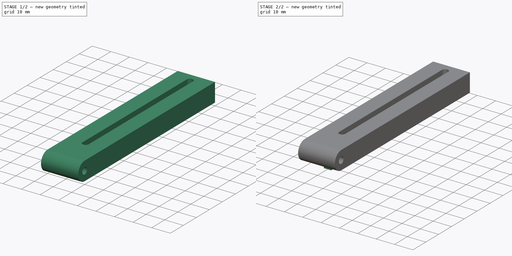
[diagram: build sequence overview — one tinted view per stage of 2, left to right]
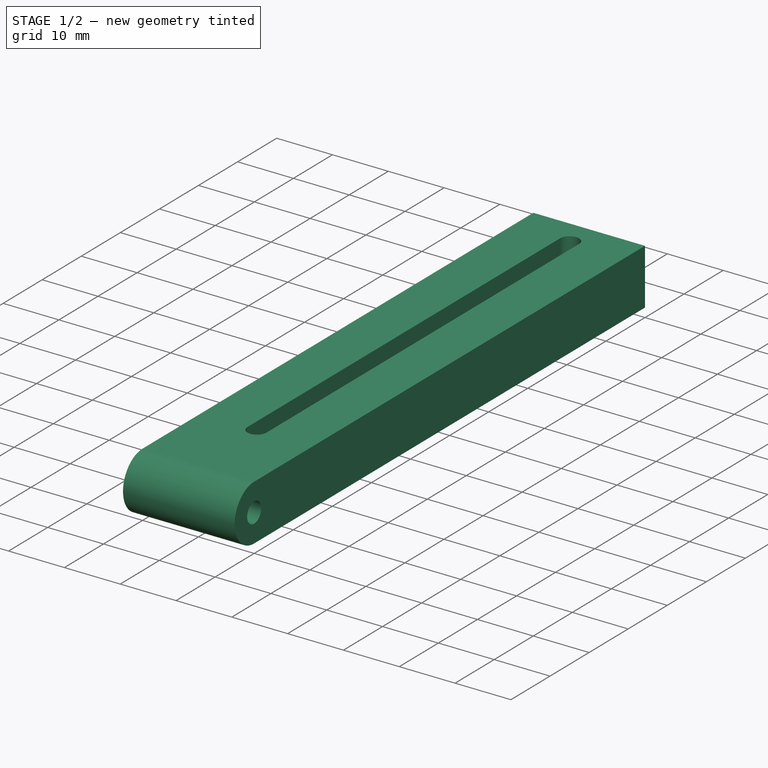
[diagram: stage 1 of 2 — iso view after this stage's code; geometry added in this stage tinted green]
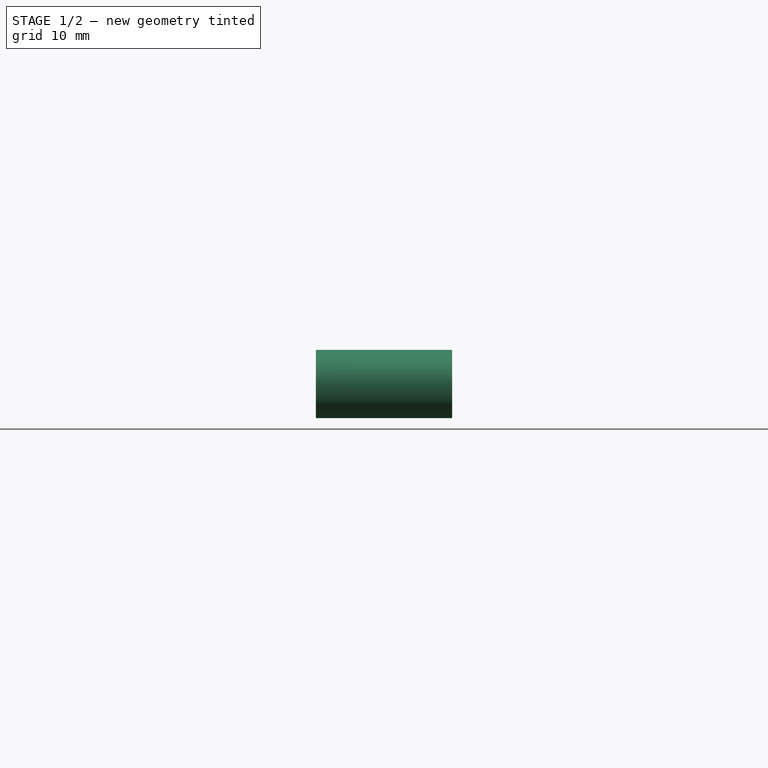
[diagram: stage 1 of 2 — front view after this stage's code; geometry added in this stage tinted green]
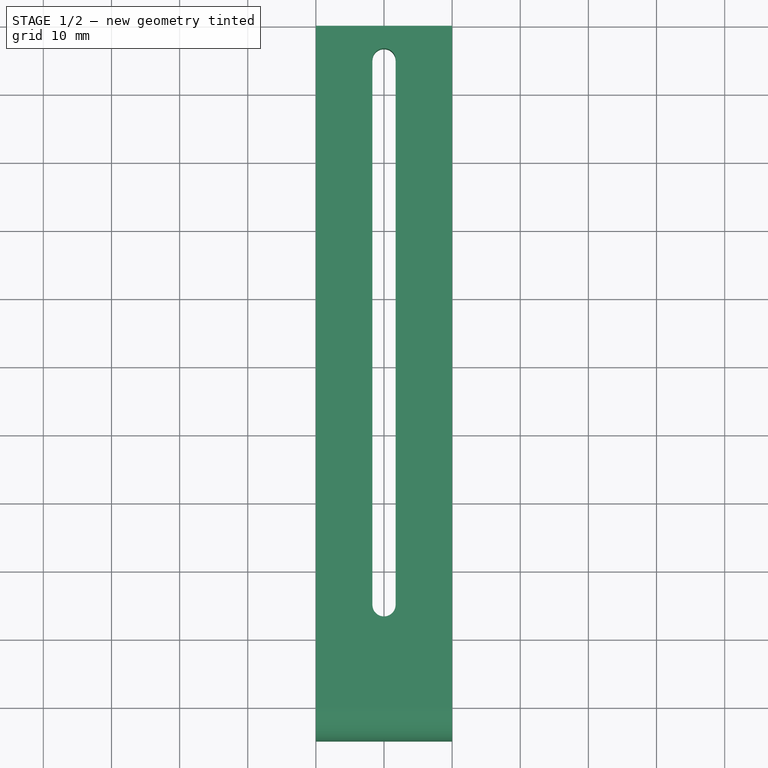
[diagram: stage 1 of 2 — top view after this stage's code; geometry added in this stage tinted green]
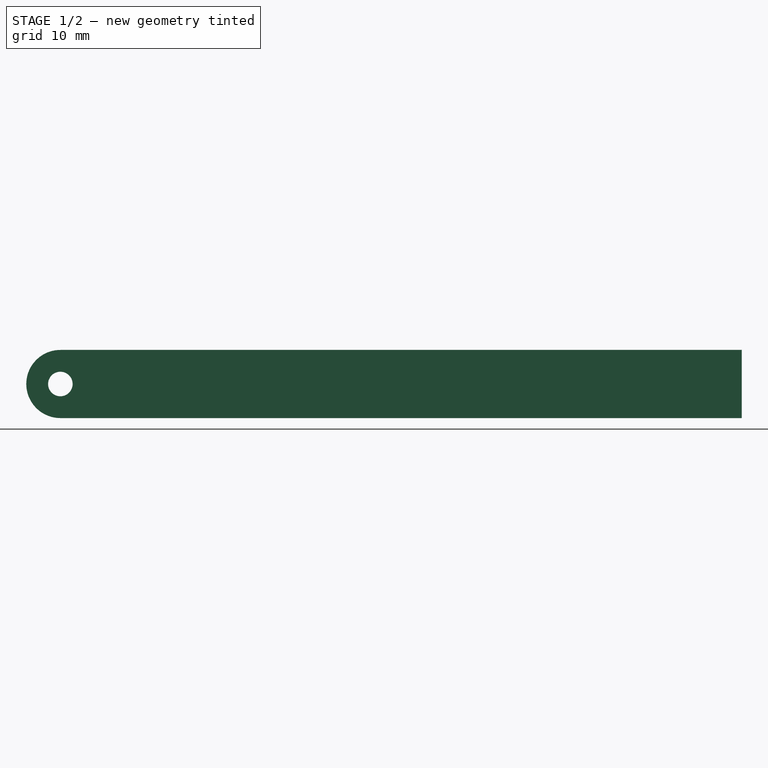
[diagram: stage 1 of 2 — right view after this stage's code; geometry added in this stage tinted green]
FCSTD DOCUMENT
Label: Arm
objects: Sketcher::SketchObject×4, PartDesign::Pad×2, PartDesign::Pocket×2
note: 10 computed .brp shape members not serialized (recipe doc carries the construction recipe); baked Part::Feature solids carry a one-line shape summary decoded from their .brp

FEATURE [Sketcher::SketchObject] Sketch
  Placement = pos=(0,0,0) rot=(0.57735,0.57735,0.57735;2.0944rad)
  sketch-geometry (6):
    g0: ArcOfCircle CenterX=0 CenterY=5 CenterZ=0 NormalX=0 NormalY=0 NormalZ=1 Radius=5 StartAngle=1.5708 EndAngle=4.71239
    g1: LineSegment StartX=0 StartY=0 StartZ=0 EndX=100 EndY=0 EndZ=0
    g2: LineSegment StartX=100 StartY=0 StartZ=0 EndX=100 EndY=10 EndZ=0
    g3: LineSegment StartX=100 StartY=10 StartZ=0 EndX=0 EndY=10 EndZ=0
    g4: LineSegment [constr] StartX=0 StartY=10 StartZ=0 EndX=0 EndY=0 EndZ=0
    g5: Circle CenterX=0 CenterY=5 CenterZ=0 NormalX=0 NormalY=0 NormalZ=1 Radius=1.8
  constraints (17):
    c: Coincident(g1,g2)
    c: Coincident(g2,g3)
    c: Coincident(g3,g4)
    c: Coincident(g4,g1)
    c: Horizontal(g1)
    c: Horizontal(g3)
    c: Vertical(g2)
    c: Vertical(g4)
    c: Coincident(g1,g0)
    c: Coincident(g0,g3)
    c: PointOnObject(g0,g4)
    c: DistanceY(g2) = 10
    c: Coincident(g5,g0)
    c: Radius(g5) = 1.8
    c: DistanceX(g0) = 0
    c: DistanceY(g0) = 0
    c: DistanceX(g1) = 100
FEATURE [PartDesign::Pad] Pad
  Length = 20
  MirroredExtent = false
  Sketch = -> Sketch
FEATURE [Sketcher::SketchObject] Sketch001
  Placement = pos=(0,0,10) rot=(0,0,1;0rad)
  Support = -> Pad [Face4]
  sketch-geometry (6):
    g0: ArcOfCircle CenterX=10 CenterY=95 CenterZ=0 NormalX=0 NormalY=0 NormalZ=1 Radius=1.7 StartAngle=0 EndAngle=3.14159
    g1: ArcOfCircle CenterX=10 CenterY=15 CenterZ=0 NormalX=0 NormalY=0 NormalZ=1 Radius=1.7 StartAngle=3.14159 EndAngle=6.28319
    g2: LineSegment [constr] StartX=8.3 StartY=95 StartZ=0 EndX=11.7 EndY=95 EndZ=0
    g3: LineSegment StartX=11.7 StartY=95 StartZ=0 EndX=11.7 EndY=15 EndZ=0
    g4: LineSegment [constr] StartX=11.7 StartY=15 StartZ=0 EndX=8.3 EndY=15 EndZ=0
    g5: LineSegment StartX=8.3 StartY=15 StartZ=0 EndX=8.3 EndY=95 EndZ=0
  constraints (18):
    c: Coincident(g2,g3)
    c: Coincident(g3,g4)
    c: Coincident(g4,g5)
    c: Coincident(g5,g2)
    c: Horizontal(g2)
    c: Horizontal(g4)
    c: Vertical(g3)
    c: Vertical(g5)
    c: Coincident(g1,g4)
    c: Coincident(g3,g1)
    c: Coincident(g2,g0)
    c: Coincident(g0,g2)
    c: PointOnObject(g0,g2)
    c: PointOnObject(g1,g4)
    c: Radius(g0) = 1.7
    c: DistanceY(g0,g1) = -80
    c: DistanceX(g1) = 10
    c: DistanceY(g1) = 15
FEATURE [PartDesign::Pocket] Pocket
  Length = 10
  Sketch = -> Sketch001
  Type = 0
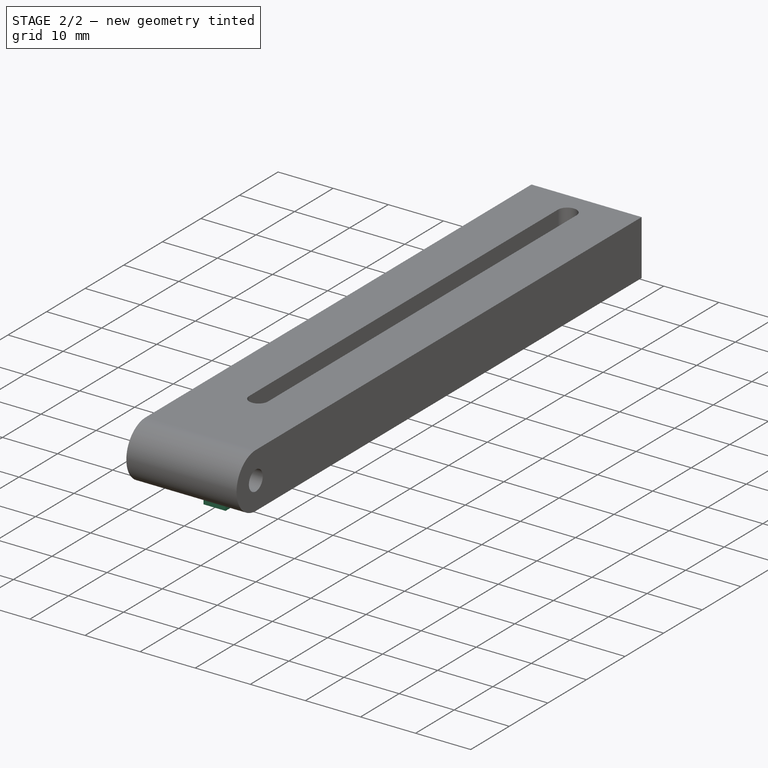
[diagram: stage 2 of 2 — iso view after this stage's code; geometry added in this stage tinted green]
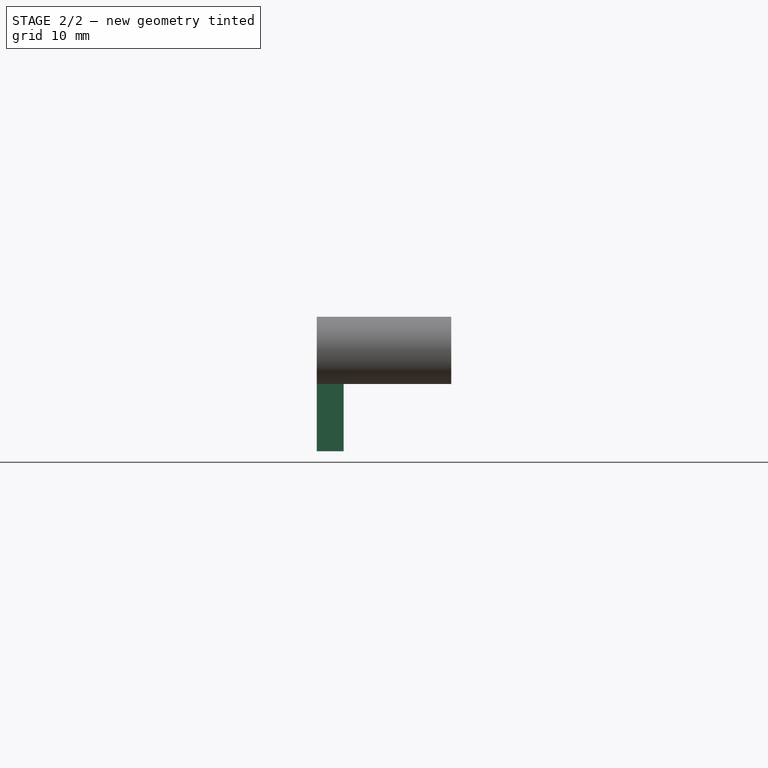
[diagram: stage 2 of 2 — front view after this stage's code; geometry added in this stage tinted green]
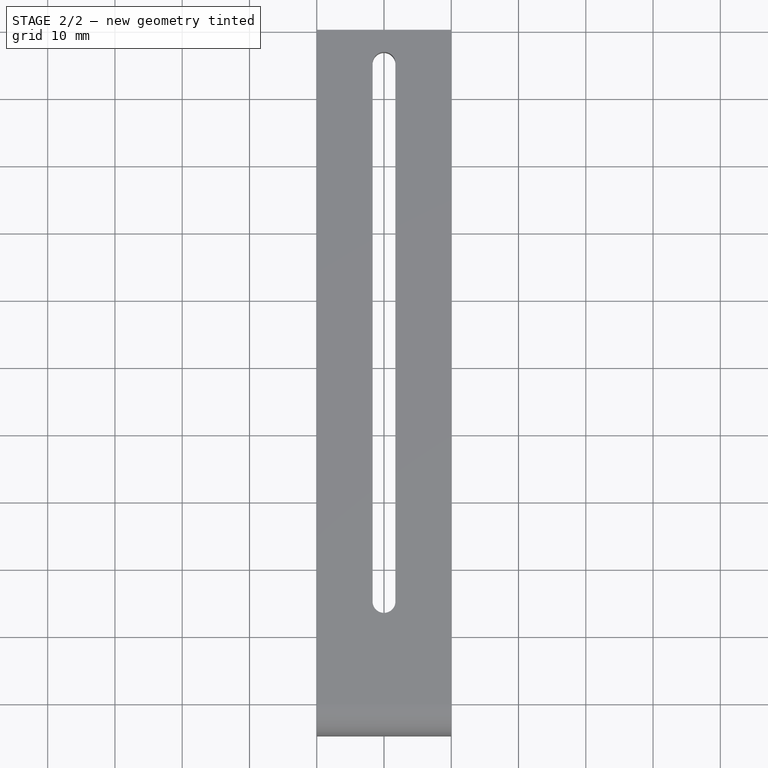
[diagram: stage 2 of 2 — top view after this stage's code; geometry added in this stage tinted green]
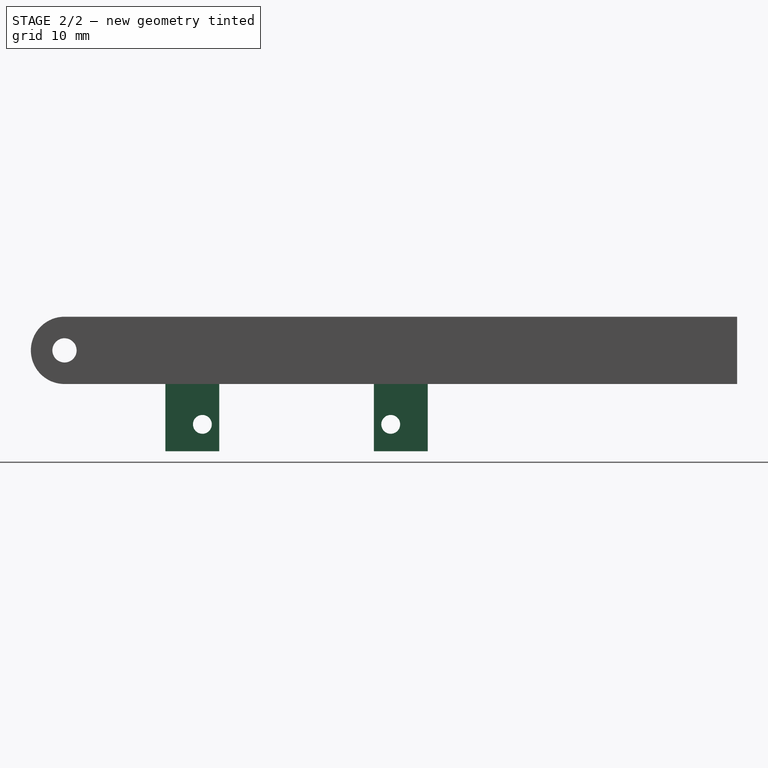
[diagram: stage 2 of 2 — right view after this stage's code; geometry added in this stage tinted green]
FEATURE [Sketcher::SketchObject] Sketch002
  Placement = pos=(0,0,0) rot=(1,0,0;3.14159rad)
  Support = -> Pocket [Face3]
  sketch-geometry (10):
    g0: LineSegment StartX=4 StartY=-23 StartZ=0 EndX=0 EndY=-23 EndZ=0
    g1: LineSegment StartX=0 StartY=-23 StartZ=0 EndX=0 EndY=-15 EndZ=0
    g2: LineSegment StartX=0 StartY=-15 StartZ=0 EndX=4 EndY=-15 EndZ=0
    g3: LineSegment StartX=4 StartY=-15 StartZ=0 EndX=4 EndY=-23 EndZ=0
    g4: LineSegment StartX=4 StartY=-46 StartZ=0 EndX=0 EndY=-46 EndZ=0
    g5: LineSegment StartX=0 StartY=-46 StartZ=0 EndX=0 EndY=-54 EndZ=0
    g6: LineSegment StartX=0 StartY=-54 StartZ=0 EndX=4 EndY=-54 EndZ=0
    g7: LineSegment StartX=4 StartY=-54 StartZ=0 EndX=4 EndY=-46 EndZ=0
    g8: LineSegment [constr] StartX=0 StartY=-23 StartZ=0 EndX=0 EndY=-46 EndZ=0
    g9: LineSegment [constr] StartX=4 StartY=-23 StartZ=0 EndX=4 EndY=-46 EndZ=0
  constraints (28):
    c: Coincident(g0,g1)
    c: Coincident(g1,g2)
    c: Coincident(g2,g3)
    c: Coincident(g3,g0)
    c: Horizontal(g0)
    c: Horizontal(g2)
    c: Vertical(g1)
    c: Vertical(g3)
    c: Coincident(g4,g5)
    c: Coincident(g5,g6)
    c: Coincident(g6,g7)
    c: Coincident(g7,g4)
    c: Horizontal(g4)
    c: Horizontal(g6)
    c: Vertical(g5)
    c: Vertical(g7)
    c: DistanceX(g6) = 4
    c: Equal(g7,g3)
    c: Coincident(g8,g0)
    c: Coincident(g8,g4)
    c: Vertical(g8)
    c: Coincident(g9,g0)
    c: Coincident(g9,g4)
    c: Vertical(g9)
    c: DistanceY(g3) = -8
    c: DistanceX(g1) = 0
    c: DistanceY(g1) = -15
    c: DistanceY(g9) = -23
FEATURE [PartDesign::Pad] Pad001
  Length = 10
  MirroredExtent = false
  Sketch = -> Sketch002
FEATURE [Sketcher::SketchObject] Sketch003
  Placement = pos=(0,0,0) rot=(0.57735,-0.57735,-0.57735;2.0944rad)
  Support = -> Pad001 [Face17]
  sketch-geometry (3):
    g0: Circle CenterX=-48.5 CenterY=-6 CenterZ=0 NormalX=0 NormalY=0 NormalZ=1 Radius=1.4
    g1: Circle CenterX=-20.5 CenterY=-6 CenterZ=0 NormalX=0 NormalY=0 NormalZ=1 Radius=1.4
    g2: LineSegment [constr] StartX=-48.5 StartY=-6 StartZ=0 EndX=-20.5 EndY=-6 EndZ=0
  constraints (8):
    c: Coincident(g2,g0)
    c: Coincident(g2,g1)
    c: Horizontal(g2)
    c: Equal(g1,g0)
    c: Radius(g0) = 1.4
    c: DistanceX(g2) = 28
    c: DistanceX(g1) = -20.5
    c: DistanceY(g1) = -6
FEATURE [PartDesign::Pocket] Pocket001
  Length = 5
  Sketch = -> Sketch003
  Type = 0
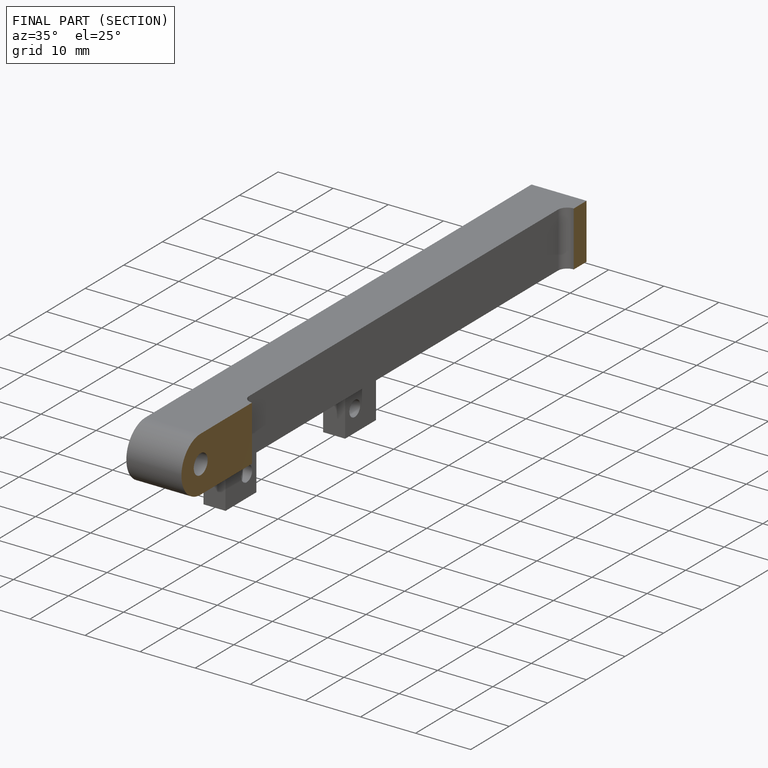
[diagram: finished part — half-section view (interior)]
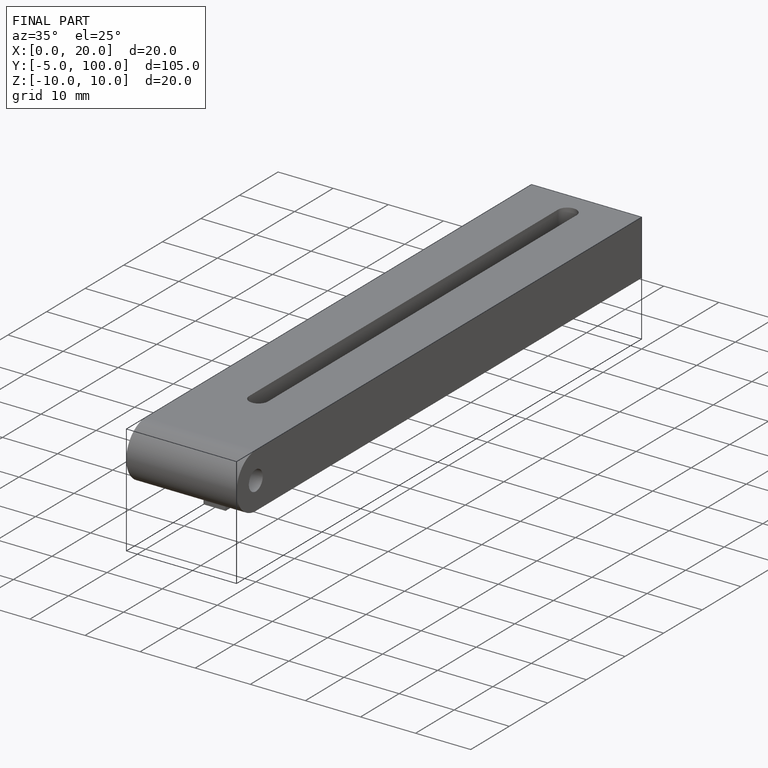
[diagram: finished part — iso view with bounding-box wireframe]
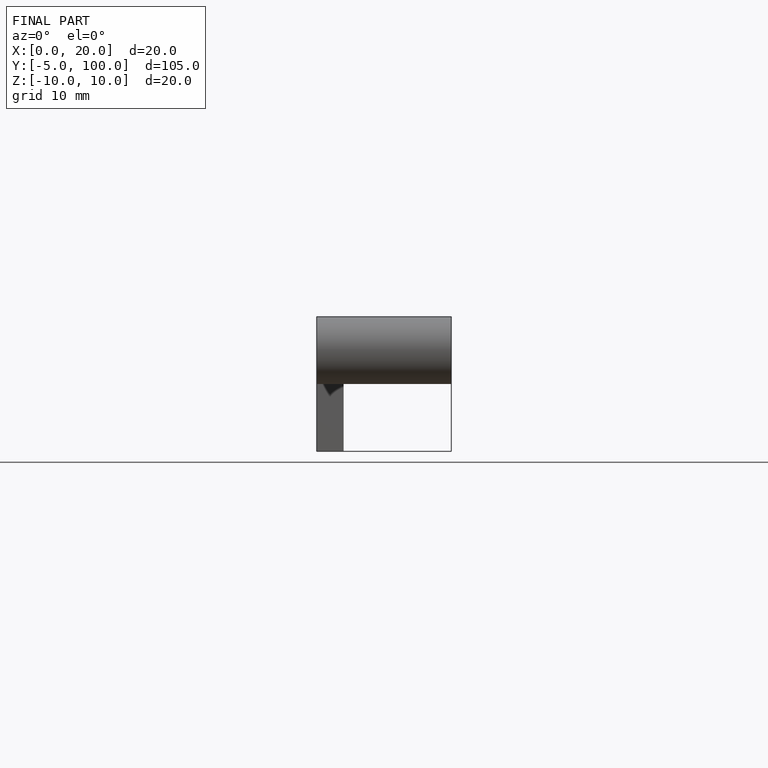
[diagram: finished part — front view with bounding-box wireframe]
